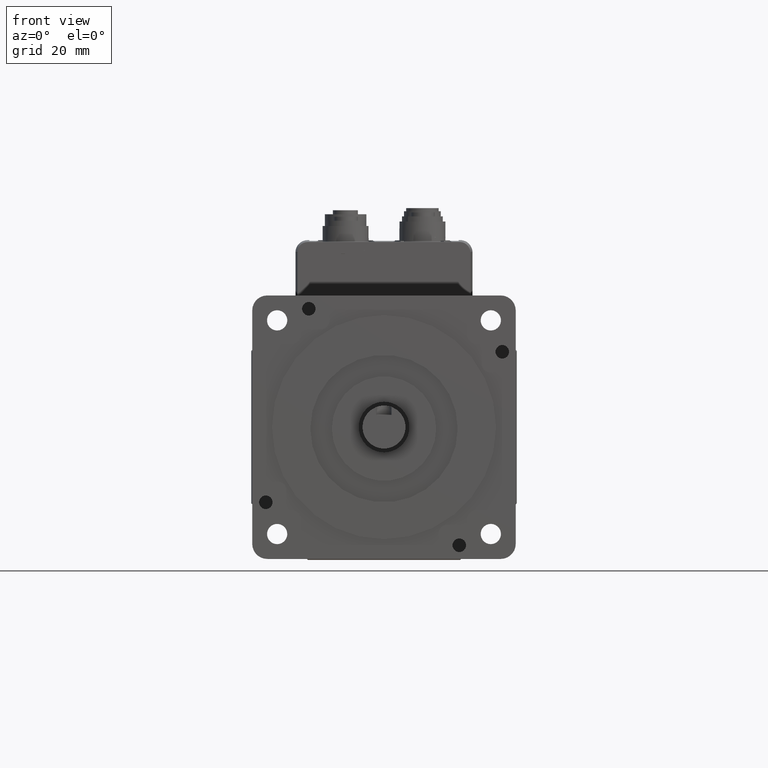
[diagram: clean part render]
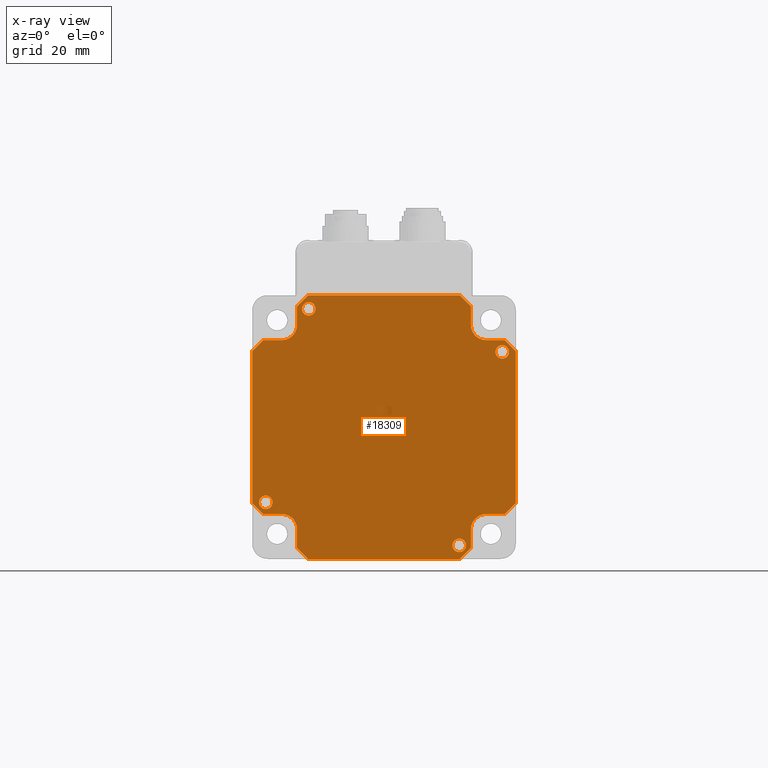
[diagram: x-ray — body ghosted, one internal face saturated and labeled with its STEP entity id]
A machine part, front view, then the same camera in x-ray: the body is ghosted and one INTERNAL B-rep face — a face not visible from any outside direction — is saturated and labeled: STEP entity #18309.
In plain terms, the highlighted planar face has unit normal (0, 1, 0).
Its self-contained STEP definition (entity closure, byte-faithful):
#538=CIRCLE('',#19301,2.2);
#540=CIRCLE('',#19304,2.2);
#542=CIRCLE('',#19307,2.19999999999999);
#544=CIRCLE('',#19310,2.19999999999999);
#545=CIRCLE('',#19316,5.);
#547=CIRCLE('',#19325,5.);
#549=CIRCLE('',#19328,5.);
#551=CIRCLE('',#19331,5.);
#1954=ORIENTED_EDGE('',*,*,#6405,.F.);
#1955=ORIENTED_EDGE('',*,*,#6403,.F.);
#1956=ORIENTED_EDGE('',*,*,#6401,.F.);
#1957=ORIENTED_EDGE('',*,*,#6399,.F.);
#1958=ORIENTED_EDGE('',*,*,#6418,.F.);
#1959=ORIENTED_EDGE('',*,*,#6395,.F.);
#1960=ORIENTED_EDGE('',*,*,#6414,.F.);
#1961=ORIENTED_EDGE('',*,*,#6382,.F.);
#1962=ORIENTED_EDGE('',*,*,#6420,.F.);
#1963=ORIENTED_EDGE('',*,*,#6407,.F.);
#1964=ORIENTED_EDGE('',*,*,#6432,.F.);
#1965=ORIENTED_EDGE('',*,*,#6375,.F.);
#1966=ORIENTED_EDGE('',*,*,#6422,.F.);
#1967=ORIENTED_EDGE('',*,*,#6358,.F.);
#1968=ORIENTED_EDGE('',*,*,#6424,.F.);
#1969=ORIENTED_EDGE('',*,*,#6371,.F.);
#1970=ORIENTED_EDGE('',*,*,#6436,.F.);
#1971=ORIENTED_EDGE('',*,*,#6355,.F.);
#1972=ORIENTED_EDGE('',*,*,#6426,.F.);
#1973=ORIENTED_EDGE('',*,*,#6342,.F.);
#1974=ORIENTED_EDGE('',*,*,#6428,.F.);
#1975=ORIENTED_EDGE('',*,*,#6411,.F.);
#1976=ORIENTED_EDGE('',*,*,#6434,.F.);
#1977=ORIENTED_EDGE('',*,*,#6339,.F.);
#1978=ORIENTED_EDGE('',*,*,#6430,.F.);
#1979=ORIENTED_EDGE('',*,*,#6326,.F.);
#1980=ORIENTED_EDGE('',*,*,#6416,.F.);
#1981=ORIENTED_EDGE('',*,*,#6379,.F.);
#6326=EDGE_CURVE('',#8688,#8689,#10178,.T.);
#6339=EDGE_CURVE('',#8701,#8702,#10191,.T.);
#6342=EDGE_CURVE('',#8704,#8705,#10194,.T.);
#6355=EDGE_CURVE('',#8717,#8718,#10207,.T.);
#6358=EDGE_CURVE('',#8720,#8721,#10210,.T.);
#6371=EDGE_CURVE('',#8733,#8734,#10223,.T.);
#6375=EDGE_CURVE('',#8737,#8738,#10227,.T.);
#6379=EDGE_CURVE('',#8741,#8742,#10231,.T.);
#6382=EDGE_CURVE('',#8744,#8745,#10234,.T.);
#6395=EDGE_CURVE('',#8757,#8758,#10247,.T.);
#6399=EDGE_CURVE('',#8761,#8761,#538,.T.);
#6401=EDGE_CURVE('',#8763,#8763,#540,.T.);
#6403=EDGE_CURVE('',#8765,#8765,#542,.T.);
#6405=EDGE_CURVE('',#8767,#8767,#544,.T.);
#6407=EDGE_CURVE('',#8769,#8770,#10251,.T.);
#6411=EDGE_CURVE('',#8773,#8774,#10255,.T.);
#6414=EDGE_CURVE('',#8745,#8757,#10258,.T.);
#6416=EDGE_CURVE('',#8742,#8688,#10260,.T.);
#6418=EDGE_CURVE('',#8758,#8741,#545,.T.);
#6420=EDGE_CURVE('',#8770,#8744,#10262,.T.);
#6422=EDGE_CURVE('',#8721,#8737,#10264,.T.);
#6424=EDGE_CURVE('',#8734,#8720,#10266,.T.);
#6426=EDGE_CURVE('',#8705,#8717,#10268,.T.);
#6428=EDGE_CURVE('',#8774,#8704,#10270,.T.);
#6430=EDGE_CURVE('',#8689,#8701,#10272,.T.);
#6432=EDGE_CURVE('',#8738,#8769,#547,.T.);
#6434=EDGE_CURVE('',#8702,#8773,#549,.T.);
#6436=EDGE_CURVE('',#8718,#8733,#551,.T.);
#8688=VERTEX_POINT('',#26474);
#8689=VERTEX_POINT('',#26475);
#8701=VERTEX_POINT('',#26500);
#8702=VERTEX_POINT('',#26502);
#8704=VERTEX_POINT('',#26508);
#8705=VERTEX_POINT('',#26509);
#8717=VERTEX_POINT('',#26534);
#8718=VERTEX_POINT('',#26536);
#8720=VERTEX_POINT('',#26542);
#8721=VERTEX_POINT('',#26543);
#8733=VERTEX_POINT('',#26568);
#8734=VERTEX_POINT('',#26570);
#8737=VERTEX_POINT('',#26577);
#8738=VERTEX_POINT('',#26579);
#8741=VERTEX_POINT('',#26586);
#8742=VERTEX_POINT('',#26588);
#8744=VERTEX_POINT('',#26594);
#8745=VERTEX_POINT('',#26595);
#8757=VERTEX_POINT('',#26620);
#8758=VERTEX_POINT('',#26622);
#8761=VERTEX_POINT('',#26630);
#8763=VERTEX_POINT('',#26635);
#8765=VERTEX_POINT('',#26640);
#8767=VERTEX_POINT('',#26645);
#8769=VERTEX_POINT('',#26649);
#8770=VERTEX_POINT('',#26651);
#8773=VERTEX_POINT('',#26658);
#8774=VERTEX_POINT('',#26660);
#10178=LINE('',#26473,#11568);
#10191=LINE('',#26501,#11581);
#10194=LINE('',#26507,#11584);
#10207=LINE('',#26535,#11597);
#10210=LINE('',#26541,#11600);
#10223=LINE('',#26569,#11613);
#10227=LINE('',#26578,#11617);
#10231=LINE('',#26587,#11621);
#10234=LINE('',#26593,#11624);
#10247=LINE('',#26621,#11637);
#10251=LINE('',#26650,#11641);
#10255=LINE('',#26659,#11645);
#10258=LINE('',#26665,#11648);
#10260=LINE('',#26668,#11650);
#10262=LINE('',#26674,#11652);
#10264=LINE('',#26677,#11654);
#10266=LINE('',#26680,#11656);
#10268=LINE('',#26683,#11658);
#10270=LINE('',#26686,#11660);
#10272=LINE('',#26689,#11662);
#11568=VECTOR('',#21223,1000.);
#11581=VECTOR('',#21238,1000.);
#11584=VECTOR('',#21243,1000.);
#11597=VECTOR('',#21258,1000.);
#11600=VECTOR('',#21263,1000.);
#11613=VECTOR('',#21278,1000.);
#11617=VECTOR('',#21284,1000.);
#11621=VECTOR('',#21290,1000.);
#11624=VECTOR('',#21295,1000.);
#11637=VECTOR('',#21310,1000.);
#11641=VECTOR('',#21340,1000.);
#11645=VECTOR('',#21346,1000.);
#11648=VECTOR('',#21351,1000.);
#11650=VECTOR('',#21355,1000.);
#11652=VECTOR('',#21365,1000.);
#11654=VECTOR('',#21369,1000.);
#11656=VECTOR('',#21373,1000.);
#11658=VECTOR('',#21377,1000.);
#11660=VECTOR('',#21381,1000.);
#11662=VECTOR('',#21385,1000.);
#13062=EDGE_LOOP('',(#1954));
#13063=EDGE_LOOP('',(#1955));
#13064=EDGE_LOOP('',(#1956));
#13065=EDGE_LOOP('',(#1957));
#13066=EDGE_LOOP('',(#1958,#1959,#1960,#1961,#1962,#1963,#1964,#1965,#1966,
#1967,#1968,#1969,#1970,#1971,#1972,#1973,#1974,#1975,#1976,#1977,#1978,
#1979,#1980,#1981));
#14271=FACE_BOUND('',#13062,.T.);
#14272=FACE_BOUND('',#13063,.T.);
#14273=FACE_BOUND('',#13064,.T.);
#14274=FACE_BOUND('',#13065,.T.);
#14275=FACE_BOUND('',#13066,.T.);
#15424=PLANE('',#19417);
#18309=ADVANCED_FACE('',(#14271,#14272,#14273,#14274,#14275),#15424,.T.);
#19301=AXIS2_PLACEMENT_3D('',#26629,#21317,#21318);
#19304=AXIS2_PLACEMENT_3D('',#26634,#21323,#21324);
#19307=AXIS2_PLACEMENT_3D('',#26639,#21329,#21330);
#19310=AXIS2_PLACEMENT_3D('',#26644,#21335,#21336);
#19316=AXIS2_PLACEMENT_3D('',#26671,#21359,#21360);
#19325=AXIS2_PLACEMENT_3D('',#26692,#21389,#21390);
#19328=AXIS2_PLACEMENT_3D('',#26695,#21395,#21396);
#19331=AXIS2_PLACEMENT_3D('',#26698,#21401,#21402);
#19417=AXIS2_PLACEMENT_3D('',#26880,#21611,#21612);
#21223=DIRECTION('',(0.,0.,-1.));
#21238=DIRECTION('',(1.,0.,0.));
#21243=DIRECTION('',(1.,0.,0.));
#21258=DIRECTION('',(0.,0.,1.));
#21263=DIRECTION('',(-2.80926878700697E-16,0.,1.));
#21278=DIRECTION('',(1.,0.,3.46944695195363E-15));
#21284=DIRECTION('',(-1.,0.,0.));
#21290=DIRECTION('',(-1.,0.,0.));
#21295=DIRECTION('',(-1.,0.,2.80926878700698E-16));
#21310=DIRECTION('',(-3.46944695195361E-15,0.,-1.));
#21317=DIRECTION('',(0.,1.,0.));
#21318=DIRECTION('',(0.,0.,1.));
#21323=DIRECTION('',(0.,1.,0.));
#21324=DIRECTION('',(0.,0.,1.));
#21329=DIRECTION('',(0.,1.,0.));
#21330=DIRECTION('',(0.,0.,1.));
#21335=DIRECTION('',(0.,1.,0.));
#21336=DIRECTION('',(0.,0.,1.));
#21340=DIRECTION('',(0.,0.,1.));
#21346=DIRECTION('',(-6.36065274524833E-15,0.,-1.));
#21351=DIRECTION('',(-0.707106781186547,0.,-0.707106781186548));
#21355=DIRECTION('',(-0.707106781186545,0.,-0.70710678118655));
#21359=DIRECTION('',(0.,1.,0.));
#21360=DIRECTION('',(0.,0.,1.));
#21365=DIRECTION('',(-0.707106781186549,0.,0.707106781186546));
#21369=DIRECTION('',(-0.707106781186548,0.,0.707106781186548));
#21373=DIRECTION('',(0.707106781186548,0.,0.707106781186548));
#21377=DIRECTION('',(0.707106781186548,0.,0.707106781186548));
#21381=DIRECTION('',(0.707106781186546,0.,-0.707106781186549));
#21385=DIRECTION('',(0.707106781186545,0.,-0.70710678118655));
#21389=DIRECTION('',(0.,1.,0.));
#21390=DIRECTION('',(0.,0.,1.));
#21395=DIRECTION('',(0.,1.,0.));
#21396=DIRECTION('',(0.,0.,1.));
#21401=DIRECTION('',(0.,1.,0.));
#21402=DIRECTION('',(0.,0.,-1.));
#21611=DIRECTION('',(0.,1.,0.));
#21612=DIRECTION('',(0.,0.,1.));
#26473=CARTESIAN_POINT('',(4.06562499999999,108.5,88.76375));
#26474=CARTESIAN_POINT('',(4.06562499999999,108.5,88.76375));
#26475=CARTESIAN_POINT('',(4.06562499999999,108.5,39.36375));
#26500=CARTESIAN_POINT('',(7.66562499999999,108.5,35.76375));
#26501=CARTESIAN_POINT('',(7.66562499999999,108.5,35.76375));
#26502=CARTESIAN_POINT('',(13.665625,108.5,35.76375));
#26507=CARTESIAN_POINT('',(22.265625,108.5,21.16375));
#26508=CARTESIAN_POINT('',(22.265625,108.5,21.16375));
#26509=CARTESIAN_POINT('',(71.665625,108.5,21.16375));
#26534=CARTESIAN_POINT('',(75.265625,108.5,24.76375));
#26535=CARTESIAN_POINT('',(75.265625,108.5,24.76375));
#26536=CARTESIAN_POINT('',(75.265625,108.5,30.76375));
#26541=CARTESIAN_POINT('',(89.865625,108.5,39.36375));
#26542=CARTESIAN_POINT('',(89.865625,108.5,39.36375));
#26543=CARTESIAN_POINT('',(89.865625,108.5,88.76375));
#26568=CARTESIAN_POINT('',(80.265625,108.5,35.76375));
#26569=CARTESIAN_POINT('',(80.265625,108.5,35.76375));
#26570=CARTESIAN_POINT('',(86.265625,108.5,35.76375));
#26577=CARTESIAN_POINT('',(86.265625,108.5,92.36375));
#26578=CARTESIAN_POINT('',(86.265625,108.5,92.36375));
#26579=CARTESIAN_POINT('',(80.265625,108.5,92.36375));
#26586=CARTESIAN_POINT('',(13.665625,108.5,92.36375));
#26587=CARTESIAN_POINT('',(13.665625,108.5,92.36375));
#26588=CARTESIAN_POINT('',(7.66562499999997,108.5,92.36375));
#26593=CARTESIAN_POINT('',(71.665625,108.5,106.96375));
#26594=CARTESIAN_POINT('',(71.665625,108.5,106.96375));
#26595=CARTESIAN_POINT('',(22.265625,108.5,106.96375));
#26620=CARTESIAN_POINT('',(18.665625,108.5,103.36375));
#26621=CARTESIAN_POINT('',(18.665625,108.5,103.36375));
#26622=CARTESIAN_POINT('',(18.665625,108.5,97.36375));
#26629=CARTESIAN_POINT('',(8.46562499999999,108.5,39.56375));
#26630=CARTESIAN_POINT('',(8.46562499999999,108.5,41.76375));
#26634=CARTESIAN_POINT('',(71.465625,108.5,25.56375));
#26635=CARTESIAN_POINT('',(71.465625,108.5,27.76375));
#26639=CARTESIAN_POINT('',(85.465625,108.5,88.56375));
#26640=CARTESIAN_POINT('',(85.465625,108.5,90.76375));
#26644=CARTESIAN_POINT('',(22.465625,108.5,102.56375));
#26645=CARTESIAN_POINT('',(22.465625,108.5,104.76375));
#26649=CARTESIAN_POINT('',(75.265625,108.5,97.36375));
#26650=CARTESIAN_POINT('',(75.265625,108.5,97.36375));
#26651=CARTESIAN_POINT('',(75.265625,108.5,103.36375));
#26658=CARTESIAN_POINT('',(18.665625,108.5,30.76375));
#26659=CARTESIAN_POINT('',(18.665625,108.5,30.76375));
#26660=CARTESIAN_POINT('',(18.665625,108.5,24.76375));
#26665=CARTESIAN_POINT('',(22.265625,108.5,106.96375));
#26668=CARTESIAN_POINT('',(7.66562499999997,108.5,92.36375));
#26671=CARTESIAN_POINT('',(13.665625,108.5,97.36375));
#26674=CARTESIAN_POINT('',(75.265625,108.5,103.36375));
#26677=CARTESIAN_POINT('',(89.865625,108.5,88.76375));
#26680=CARTESIAN_POINT('',(86.265625,108.5,35.76375));
#26683=CARTESIAN_POINT('',(71.665625,108.5,21.16375));
#26686=CARTESIAN_POINT('',(18.665625,108.5,24.76375));
#26689=CARTESIAN_POINT('',(4.06562499999999,108.5,39.36375));
#26692=CARTESIAN_POINT('',(80.265625,108.5,97.36375));
#26695=CARTESIAN_POINT('',(13.665625,108.5,30.76375));
#26698=CARTESIAN_POINT('',(80.265625,108.5,30.76375));
#26880=CARTESIAN_POINT('',(13.665625,108.5,97.36375));